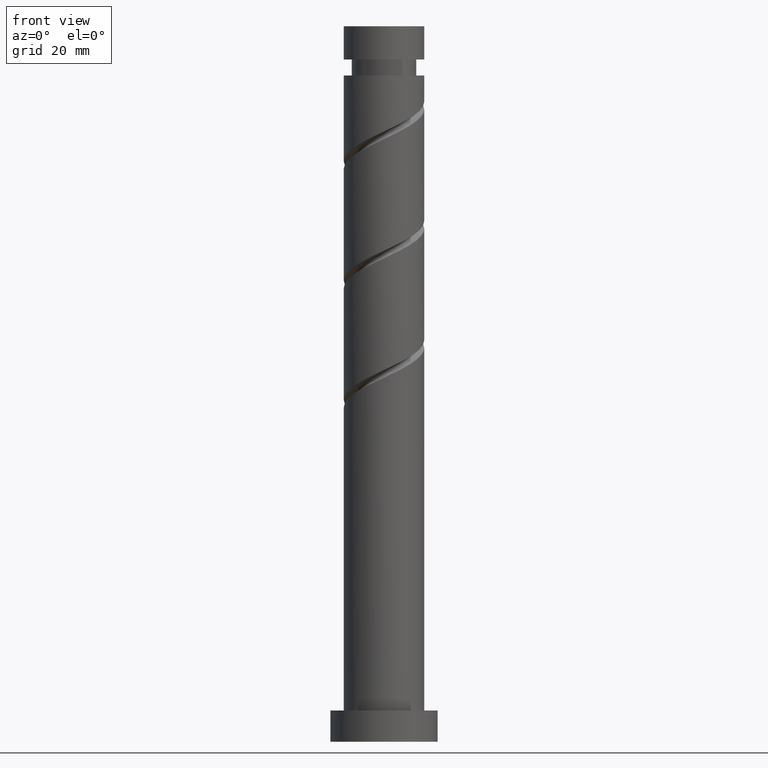
[diagram: clean part render]
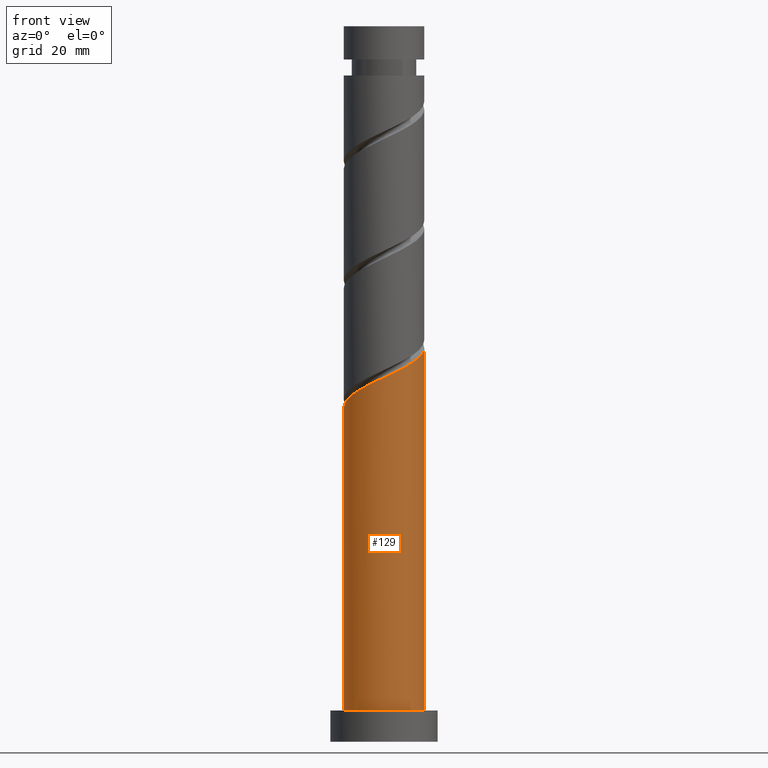
[diagram: same view with one face highlighted and labeled with its STEP entity id]
A machine part, front view. The second image highlights one B-rep face of the part: STEP entity #129.
In plain terms, the highlighted cylindrical surface (partial cylindrical patch) has radius 9 mm, axis along (-0, -0, -1).
Its self-contained STEP definition (entity closure, byte-faithful):
#33 = CARTESIAN_POINT ( 'NONE',  ( 8.474388695875235911, -3.295327640004068748, 86.53826192995255440 ) ) ;
#129 = ADVANCED_FACE ( 'NONE', ( #567 ), #159, .T. ) ;
#145 = VECTOR ( 'NONE', #1249, 1000.000000000000000 ) ;
#159 = CYLINDRICAL_SURFACE ( 'NONE', #1243, 9.000000000000000000 ) ;
#161 = CARTESIAN_POINT ( 'NONE',  ( 8.766953093447114043, -2.034830080694290277, 87.14432253601314926 ) ) ;
#166 = CARTESIAN_POINT ( 'NONE',  ( -8.039986862409380208, -4.246534972896995441, 76.84129223298285183 ) ) ;
#178 = CARTESIAN_POINT ( 'NONE',  ( 1.790977386791916981, -8.820000000000012719, 82.29583768752830508 ) ) ;
#186 = CARTESIAN_POINT ( 'NONE',  ( 5.347520799913841216, -7.353806450964123442, 84.11401950571013231 ) ) ;
#296 = CARTESIAN_POINT ( 'NONE',  ( 7.838552011798529229, -4.422341275651332282, 85.93220132389195953 ) ) ;
#303 = CARTESIAN_POINT ( 'NONE',  ( 9.000000000000010658, 4.487046211048934248E-15, 88.11304987489408802 ) ) ;
#312 = CARTESIAN_POINT ( 'NONE',  ( -6.517923746803847784, -6.339646524420996521, 78.05341344510405577 ) ) ;
#313 = CARTESIAN_POINT ( 'NONE',  ( -9.000000000000010658, -4.816096266525856755E-15, 74.77971654156074521 ) ) ;
#417 = CARTESIAN_POINT ( 'NONE',  ( 3.059101939827581607, -8.562496326743497477, 82.90189829358891416 ) ) ;
#424 = CARTESIAN_POINT ( 'NONE',  ( 9.000000000000000000, 1.102182119232617714E-15, 160.0000000000000000 ) ) ;
#447 = CARTESIAN_POINT ( 'NONE',  ( -8.910698058065491978, -1.809394412984798528, 75.62917102086163368 ) ) ;
#461 = EDGE_CURVE ( 'NONE', #1121, #898, #1378, .T. ) ;
#528 = DIRECTION ( 'NONE',  ( 1.000000000000000000, 0.000000000000000000, 0.000000000000000000 ) ) ;
#538 = VECTOR ( 'NONE', #1210, 1000.000000000000000 ) ;
#553 = CARTESIAN_POINT ( 'NONE',  ( 9.000000000000010658, -1.030760346466108368, 87.62708992192276014 ) ) ;
#567 = FACE_OUTER_BOUND ( 'NONE', #826, .T. ) ;
#581 = CARTESIAN_POINT ( 'NONE',  ( 0.5228528337562504680, -9.077503673256531513, 81.68977708146766759 ) ) ;
#644 = ORIENTED_EDGE ( 'NONE', *, *, #1483, .F. ) ;
#680 = CARTESIAN_POINT ( 'NONE',  ( 0.000000000000000000, 0.000000000000000000, 160.0000000000000000 ) ) ;
#696 = CARTESIAN_POINT ( 'NONE',  ( 7.202715327721829652, -5.549354911298587822, 85.32614071783135046 ) ) ;
#711 = LINE ( 'NONE', #424, #538 ) ;
#725 = CARTESIAN_POINT ( 'NONE',  ( -9.000000000000000000, 0.000000000000000000, 160.0000000000000000 ) ) ;
#731 = ORIENTED_EDGE ( 'NONE', *, *, #461, .T. ) ;
#792 = DIRECTION ( 'NONE',  ( 0.000000000000000000, 0.000000000000000000, 1.000000000000000000 ) ) ;
#811 = CARTESIAN_POINT ( 'NONE',  ( -9.000000000000000000, 0.000000000000000000, 7.000000000000000000 ) ) ;
#816 = CARTESIAN_POINT ( 'NONE',  ( -8.475342460237438758, -3.027964692940896096, 76.23523162692224275 ) ) ;
#826 = EDGE_LOOP ( 'NONE', ( #644, #1603, #731, #1376 ) ) ;
#830 = CARTESIAN_POINT ( 'NONE',  ( -9.000000000000010658, -4.816096266525856755E-15, 74.77971654156074521 ) ) ;
#838 = CARTESIAN_POINT ( 'NONE',  ( 6.275118063817834546, -6.451580681131359185, 84.72008011177074138 ) ) ;
#898 = VERTEX_POINT ( 'NONE', #811 ) ;
#931 = CARTESIAN_POINT ( 'NONE',  ( 0.000000000000000000, 0.000000000000000000, 7.000000000000000000 ) ) ;
#945 = DIRECTION ( 'NONE',  ( -0.000000000000000000, -0.000000000000000000, -1.000000000000000000 ) ) ;
#948 = CARTESIAN_POINT ( 'NONE',  ( -0.7664509328121147380, -8.967304665705949418, 81.08371647540712956 ) ) ;
#955 = CARTESIAN_POINT ( 'NONE',  ( -4.467817212817362993, -7.919157617866034116, 79.26553465722525971 ) ) ;
#1041 =( BOUNDED_CURVE ( )  B_SPLINE_CURVE ( 2, ( #830, #1083, #1599, #447, #816, #166, #1465, #312, #1472, #955, #1235, #1583, #948, #581, #178, #417, #1102, #186, #838, #696, #296, #33, #161, #553, #303 ),
 .UNSPECIFIED., .F., .T. ) 
 B_SPLINE_CURVE_WITH_KNOTS ( ( 3, 2, 2, 2, 2, 2, 2, 2, 2, 2, 2, 2, 3 ),
 ( 0.05452521624175132864, 0.05681818181818176772, 0.06818181818181823228, 0.07954545454545458583, 0.09090909090909093937, 0.1022727272727272929, 0.1136363636363636465, 0.1250000000000000000, 0.1363636363636363535, 0.1477272727272727071, 0.1590909090909090606, 0.1704545454545454142, 0.1795252162417513009 ),
 .UNSPECIFIED. ) 
 CURVE ( )  GEOMETRIC_REPRESENTATION_ITEM ( )  RATIONAL_B_SPLINE_CURVE ( ( 0.9061101570135583483, 0.9072237824201403456, 0.9090909090909178314, 0.8998376744372202918, 0.9090909090909178314, 0.8998376744372202918, 0.9090909090909178314, 0.8998376744372202918, 0.9090909090909178314, 0.8998376744372202918, 0.9090909090909178314, 0.8998376744372202918, 0.9090909090909178314, 0.8998376744372202918, 0.9090909090909178314, 0.8998376744372202918, 0.9090909090909178314, 0.8998376744372202918, 0.9090909090909178314, 0.8998376744372202918, 0.9090909090909178314, 0.8998376744372202918, 0.9090909090909178314, 0.9017048011079977776, 0.9061101570135582373 ) ) 
 REPRESENTATION_ITEM ( '' )  );
#1055 = AXIS2_PLACEMENT_3D ( 'NONE', #931, #792, #528 ) ;
#1083 = CARTESIAN_POINT ( 'NONE',  ( -9.000000000000012434, -0.2589797387144036622, 74.90181454627899882 ) ) ;
#1102 = CARTESIAN_POINT ( 'NONE',  ( 4.203311369870708525, -7.958151388853812236, 83.50795889964949481 ) ) ;
#1121 = VERTEX_POINT ( 'NONE', #313 ) ;
#1139 = VERTEX_POINT ( 'NONE', #1360 ) ;
#1210 = DIRECTION ( 'NONE',  ( -0.000000000000000000, -0.000000000000000000, -1.000000000000000000 ) ) ;
#1235 = CARTESIAN_POINT ( 'NONE',  ( -3.261785956098922412, -8.388131638010701607, 79.87159526328588299 ) ) ;
#1243 = AXIS2_PLACEMENT_3D ( 'NONE', #680, #945, #1589 ) ;
#1249 = DIRECTION ( 'NONE',  ( -0.000000000000000000, -0.000000000000000000, -1.000000000000000000 ) ) ;
#1346 = EDGE_CURVE ( 'NONE', #898, #1139, #1500, .T. ) ;
#1360 = CARTESIAN_POINT ( 'NONE',  ( 9.000000000000000000, 1.102182119232617714E-15, 7.000000000000000000 ) ) ;
#1376 = ORIENTED_EDGE ( 'NONE', *, *, #1346, .T. ) ;
#1378 = LINE ( 'NONE', #725, #145 ) ;
#1418 = VERTEX_POINT ( 'NONE', #1424 ) ;
#1424 = CARTESIAN_POINT ( 'NONE',  ( 9.000000000000010658, 4.487046211048934248E-15, 88.11304987489408802 ) ) ;
#1465 = CARTESIAN_POINT ( 'NONE',  ( -7.278955304606616217, -5.293090748658998201, 77.44735283904347511 ) ) ;
#1466 = EDGE_CURVE ( 'NONE', #1121, #1418, #1041, .T. ) ;
#1472 = CARTESIAN_POINT ( 'NONE',  ( -5.492870479810602724, -7.129402071143516650, 78.65947405116467905 ) ) ;
#1483 = EDGE_CURVE ( 'NONE', #1418, #1139, #711, .T. ) ;
#1500 = CIRCLE ( 'NONE', #1055, 9.000000000000000000 ) ;
#1583 = CARTESIAN_POINT ( 'NONE',  ( -2.055754699380479611, -8.857105658155367323, 80.47765586934649207 ) ) ;
#1589 = DIRECTION ( 'NONE',  ( -1.000000000000000000, 0.000000000000000000, 0.000000000000000000 ) ) ;
#1599 = CARTESIAN_POINT ( 'NONE',  ( -8.985107774542241188, -0.5175309458001439156, 75.02311041480102460 ) ) ;
#1603 = ORIENTED_EDGE ( 'NONE', *, *, #1466, .F. ) ;